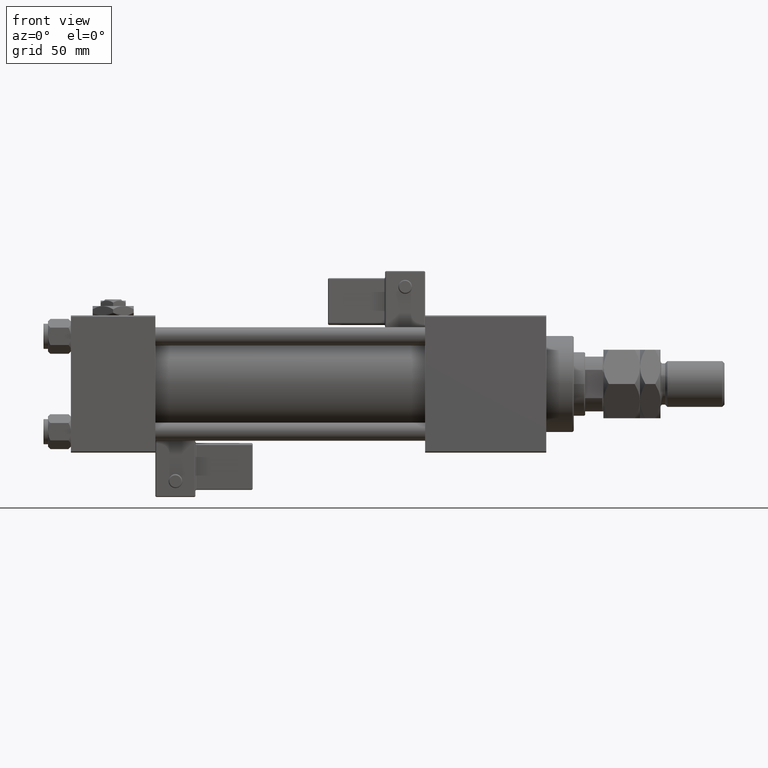
[diagram: clean part render]
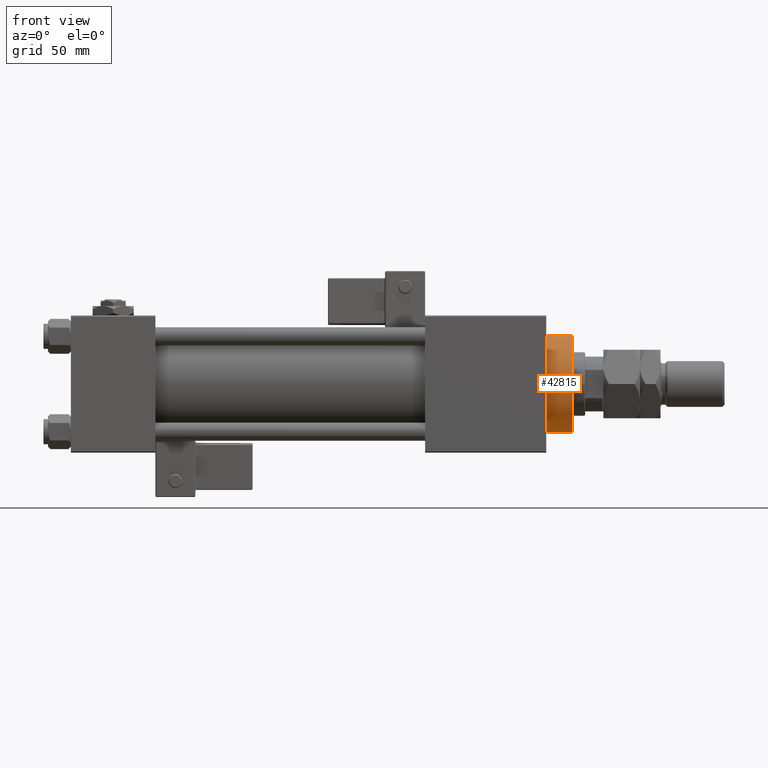
[diagram: same view with one face highlighted and labeled with its STEP entity id]
A machine part, front view. The second image highlights one B-rep face of the part: STEP entity #42815.
In plain terms, the highlighted cylindrical surface (partial cylindrical patch) has radius 21 mm, axis along (-1, -0, -0).
Its self-contained STEP definition (entity closure, byte-faithful):
#327 = DIRECTION ( 'NONE',  ( 1.000000000000000000, 0.000000000000000000, 0.000000000000000000 ) ) ;
#1477 = ORIENTED_EDGE ( 'NONE', *, *, #10894, .T. ) ;
#2133 = FACE_OUTER_BOUND ( 'NONE', #55136, .T. ) ;
#2999 = CIRCLE ( 'NONE', #7491, 21.00000000000000000 ) ;
#6424 = EDGE_CURVE ( 'NONE', #52742, #9860, #27290, .T. ) ;
#6984 = ORIENTED_EDGE ( 'NONE', *, *, #29158, .T. ) ;
#7491 = AXIS2_PLACEMENT_3D ( 'NONE', #50739, #20840, #38339 ) ;
#7656 = AXIS2_PLACEMENT_3D ( 'NONE', #53165, #29192, #46672 ) ;
#8889 = CARTESIAN_POINT ( 'NONE',  ( 21.00000000000000000, 2.571758278209441661E-15, 40.19999999999998863 ) ) ;
#9860 = VERTEX_POINT ( 'NONE', #35096 ) ;
#10348 = CARTESIAN_POINT ( 'NONE',  ( 21.00000000000000000, 2.571758278209441661E-15, 40.70000000000000284 ) ) ;
#10894 = EDGE_CURVE ( 'NONE', #49407, #51610, #11494, .T. ) ;
#11494 = LINE ( 'NONE', #54642, #41000 ) ;
#12846 = VECTOR ( 'NONE', #41122, 1000.000000000000000 ) ;
#20840 = DIRECTION ( 'NONE',  ( 0.000000000000000000, 0.000000000000000000, -1.000000000000000000 ) ) ;
#21484 = CARTESIAN_POINT ( 'NONE',  ( -21.00000000000000000, 0.000000000000000000, 40.19999999999998863 ) ) ;
#21782 = DIRECTION ( 'NONE',  ( 0.000000000000000000, 0.000000000000000000, 1.000000000000000000 ) ) ;
#26179 = CARTESIAN_POINT ( 'NONE',  ( -21.00000000000000000, 0.000000000000000000, 28.69999999999999929 ) ) ;
#27290 = LINE ( 'NONE', #10348, #12846 ) ;
#28721 = CIRCLE ( 'NONE', #53933, 21.00000000000000000 ) ;
#29000 = DIRECTION ( 'NONE',  ( -0.000000000000000000, -0.000000000000000000, -1.000000000000000000 ) ) ;
#29158 = EDGE_CURVE ( 'NONE', #52742, #49407, #2999, .T. ) ;
#29192 = DIRECTION ( 'NONE',  ( -0.000000000000000000, -0.000000000000000000, -1.000000000000000000 ) ) ;
#35096 = CARTESIAN_POINT ( 'NONE',  ( 21.00000000000000000, 2.571758278209441661E-15, 28.69999999999999929 ) ) ;
#35975 = CYLINDRICAL_SURFACE ( 'NONE', #7656, 21.00000000000000000 ) ;
#38339 = DIRECTION ( 'NONE',  ( 1.000000000000000000, 0.000000000000000000, 0.000000000000000000 ) ) ;
#41000 = VECTOR ( 'NONE', #29000, 1000.000000000000000 ) ;
#41122 = DIRECTION ( 'NONE',  ( -0.000000000000000000, -0.000000000000000000, -1.000000000000000000 ) ) ;
#41542 = EDGE_CURVE ( 'NONE', #51610, #9860, #28721, .T. ) ;
#42815 = ADVANCED_FACE ( 'NONE', ( #2133 ), #35975, .T. ) ;
#46672 = DIRECTION ( 'NONE',  ( -1.000000000000000000, 0.000000000000000000, 0.000000000000000000 ) ) ;
#48120 = ORIENTED_EDGE ( 'NONE', *, *, #41542, .T. ) ;
#49207 = ORIENTED_EDGE ( 'NONE', *, *, #6424, .F. ) ;
#49407 = VERTEX_POINT ( 'NONE', #21484 ) ;
#50739 = CARTESIAN_POINT ( 'NONE',  ( 0.000000000000000000, 0.000000000000000000, 40.19999999999998863 ) ) ;
#51610 = VERTEX_POINT ( 'NONE', #26179 ) ;
#51659 = CARTESIAN_POINT ( 'NONE',  ( 0.000000000000000000, 0.000000000000000000, 28.69999999999999929 ) ) ;
#52742 = VERTEX_POINT ( 'NONE', #8889 ) ;
#53165 = CARTESIAN_POINT ( 'NONE',  ( 0.000000000000000000, 0.000000000000000000, 40.70000000000000284 ) ) ;
#53933 = AXIS2_PLACEMENT_3D ( 'NONE', #51659, #21782, #327 ) ;
#54642 = CARTESIAN_POINT ( 'NONE',  ( -21.00000000000000000, 0.000000000000000000, 40.70000000000000284 ) ) ;
#55136 = EDGE_LOOP ( 'NONE', ( #49207, #6984, #1477, #48120 ) ) ;